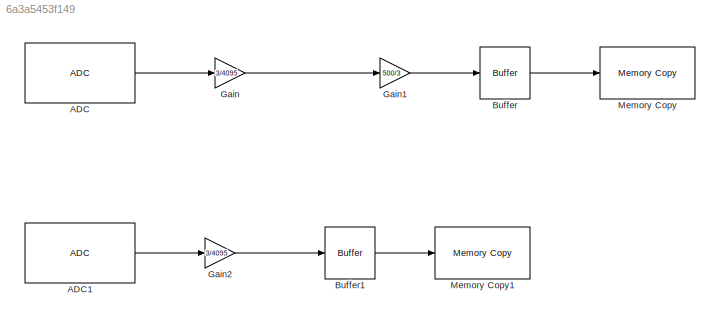
MODEL slx_6a3a5453f149
KIND model
CONFIG AbsTol = auto
CONFIG EnableMultiTasking = on
CONFIG FixedStep = 1e-4
CONFIG MaxStep = auto
CONFIG MinStep = auto
CONFIG RelTol = 1e-3
CONFIG SampleTimeConstraint = Unconstrained
CONFIG SolverName = FixedStepAuto
CONFIG StartTime = 0.0
CONFIG StopTime = Inf
BLOCK [Reference] ADC  REF=c2802xlib/ADC
  LibrarySourceBlock = c2837xDlib/ADC
  SourceBlock = c2802xlib/ADC
  SourceType = ADC Type 3-5
  UserDataPersistent = on
BLOCK [Reference] ADC1  REF=c2802xlib/ADC
  LibrarySourceBlock = c2837xDlib/ADC
  SourceBlock = c2802xlib/ADC
  SourceType = ADC Type 3-5
  UserDataPersistent = on
BLOCK [Buffer] Buffer
  N = 500
  OutputFrames = off
BLOCK [Buffer] Buffer1
  N = 500
  OutputFrames = off
BLOCK [Gain] Gain
  Gain = 3/4095
BLOCK [Gain] Gain1
  Gain = 500/3
BLOCK [Gain] Gain2
  Gain = 3/4095
BLOCK [Reference] Memory Copy  REF=idelinklib_common/Memory Copy
  LibrarySourceBlock = c2000lib/Memory Operations/Memory Copy
  SourceBlock = idelinklib_common/Memory Copy
  SourceType = Memory Copy
BLOCK [Reference] Memory Copy1  REF=idelinklib_common/Memory Copy
  LibrarySourceBlock = c2000lib/Memory Operations/Memory Copy
  SourceBlock = idelinklib_common/Memory Copy
  SourceType = Memory Copy
LINE ADC1:1 -> Gain2:1
LINE ADC:1 -> Gain:1
LINE Buffer1:1 -> Memory Copy1:1
LINE Buffer:1 -> Memory Copy:1
LINE Gain1:1 -> Buffer:1
LINE Gain2:1 -> Buffer1:1
LINE Gain:1 -> Gain1:1
